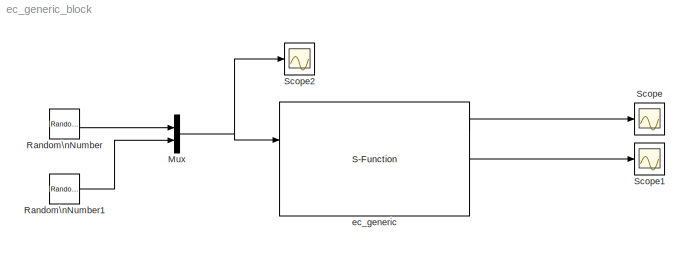
MODEL ec_generic_block
KIND model
WORKSPACE source: external: M-Code  (data not in archive)
BLOCK [Mux] Mux
  DisplayOption = bar
  Inputs = 2
  Ports = [2, 1]
BLOCK [RandomNumber] Random\nNumber
  SampleTime = 0
  Variance = 3
BLOCK [RandomNumber] Random\nNumber1
  SampleTime = 0
  Seed = 122345
  Variance = 3
BLOCK [Scope] Scope
  DataFormat = Array
  Floating = off
  LimitDataPoints = off
  NumInputPorts = 1
  Ports = [1]
  SampleTime = 0
  SaveName = adc
  SaveToWorkspace = on
  TimeRange = 1
  YMax = 2.5
  YMin = -2
BLOCK [Scope] Scope1
  DataFormat = StructureWithTime
  Floating = off
  LimitDataPoints = off
  NumInputPorts = 1
  Ports = [1]
  SampleTime = 0
  SaveName = ScopeData1
  TimeRange = 1
  YMax = 20000
  YMin = -10000
BLOCK [Scope] Scope2
  DataFormat = Array
  Floating = off
  LimitDataPoints = off
  NumInputPorts = 1
  Ports = [1]
  SampleTime = 0
  SaveName = dac
  SaveToWorkspace = on
  TimeRange = 1
  YMax = 2.5
  YMin = -2
BLOCK [S-Function] ec_generic
  FunctionName = ec_generic
  MaskDisplay = port_label('output',1,['ADC [',num2str(NADC),']'])\nport_label('output',2,['ENC [',num2str(NENC),']'])\nport_label('output',3,['DI [',num2str(NDIN),']'])\nport_label('input',1,['DAC [',num2str(NDAC),']'])\nport_label('input',2,['DO [',num2str(NDOUT),']'])
  MaskIconFrame = on
  MaskIconOpaque = on
  MaskIconRotate = none
  MaskIconUnits = autoscale
  MaskInitialization = ports
  Ports = [2, 3]
NET Mux:1 -> Scope2:1, ec_generic:1
LINE Random\nNumber1:1 -> Mux:2
LINE Random\nNumber:1 -> Mux:1
LINE ec_generic:1 -> Scope:1
LINE ec_generic:2 -> Scope1:1
note: NET lines group one-source signal fan-out (src -> all destinations, sorted); 1:1 wires keep LINE
